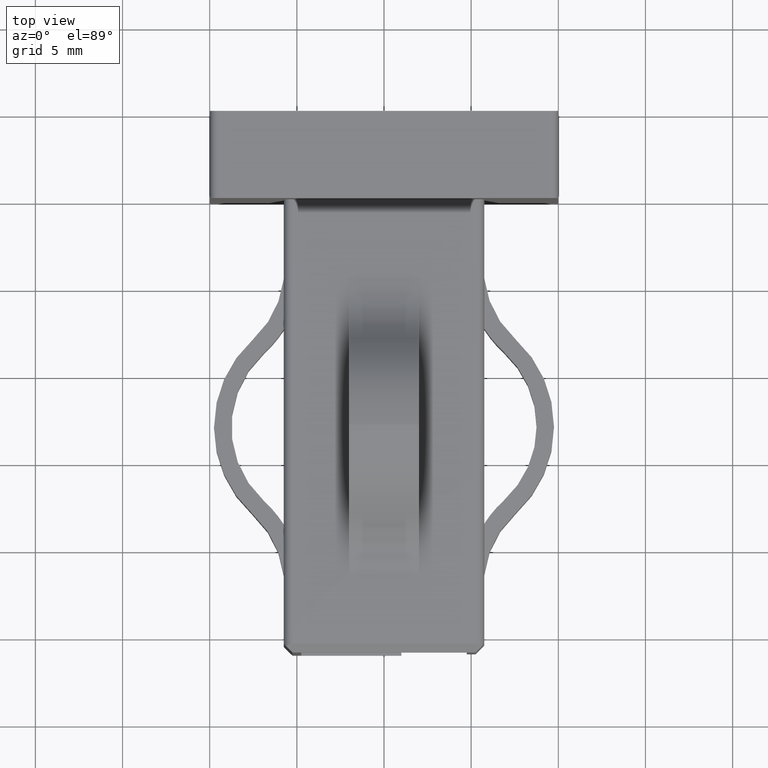
[diagram: clean part render]
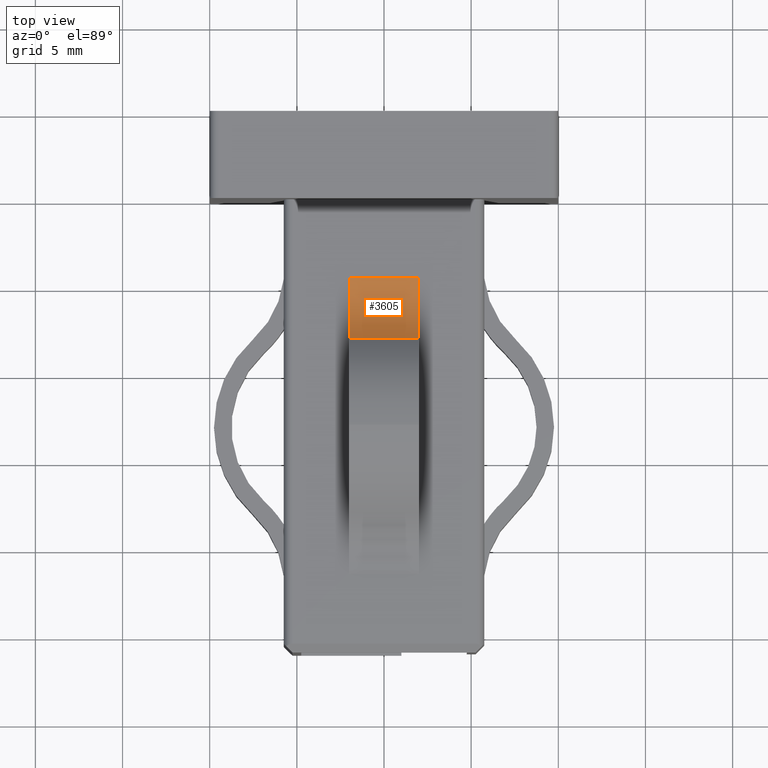
[diagram: same view with one face highlighted and labeled with its STEP entity id]
A machine part, top view. The second image highlights one B-rep face of the part: STEP entity #3605.
In plain terms, the highlighted cylindrical surface (partial cylindrical patch) has radius 4.5423 mm, axis along (-1, -0, 0).
Its self-contained STEP definition (entity closure, byte-faithful):
#884 = VERTEX_POINT ( 'NONE', #8758 ) ;
#1296 = AXIS2_PLACEMENT_3D ( 'NONE', #12902, #7290, #5179 ) ;
#2983 = DIRECTION ( 'NONE',  ( -1.000000000000000000, -0.0000000000000000000, 1.927470528863118800E-016 ) ) ;
#3000 = CARTESIAN_POINT ( 'NONE',  ( 2.000000000000001300, -8.000000077064413500, 7.397058844862114800 ) ) ;
#3574 = ORIENTED_EDGE ( 'NONE', *, *, #4643, .F. ) ;
#3605 = ADVANCED_FACE ( 'NONE', ( #5211 ), #9430, .F. ) ;
#4643 = EDGE_CURVE ( 'NONE', #13331, #8452, #7863, .T. ) ;
#4831 = DIRECTION ( 'NONE',  ( -1.909529633143236900E-016, 0.0000000000000000000, -1.000000000000000000 ) ) ;
#4834 = CARTESIAN_POINT ( 'NONE',  ( 2.000000000000002200, -4.500000000000000900, 10.29227953802768200 ) ) ;
#4927 = DIRECTION ( 'NONE',  ( 1.909529633143236900E-016, 0.0000000000000000000, 1.000000000000000000 ) ) ;
#5169 = EDGE_CURVE ( 'NONE', #9126, #884, #11627, .T. ) ;
#5179 = DIRECTION ( 'NONE',  ( -1.909529633143236900E-016, 0.0000000000000000000, -1.000000000000000000 ) ) ;
#5211 = FACE_OUTER_BOUND ( 'NONE', #11840, .T. ) ;
#5232 = ORIENTED_EDGE ( 'NONE', *, *, #7564, .T. ) ;
#7060 = CIRCLE ( 'NONE', #1296, 4.542279538027684400 ) ;
#7194 = VECTOR ( 'NONE', #2983, 1000.000000000000000 ) ;
#7290 = DIRECTION ( 'NONE',  ( -1.000000000000000000, -3.697785493223492800E-032, 1.927470528863119000E-016 ) ) ;
#7564 = EDGE_CURVE ( 'NONE', #884, #8452, #12935, .T. ) ;
#7860 = AXIS2_PLACEMENT_3D ( 'NONE', #11239, #9175, #4831 ) ;
#7863 = LINE ( 'NONE', #3000, #9408 ) ;
#8213 = CARTESIAN_POINT ( 'NONE',  ( 2.000000000000001300, -4.500000000000000900, 5.749999999999998200 ) ) ;
#8452 = VERTEX_POINT ( 'NONE', #8783 ) ;
#8758 = CARTESIAN_POINT ( 'NONE',  ( -1.999999999999999100, -4.500000000000000900, 5.749999999999998200 ) ) ;
#8783 = CARTESIAN_POINT ( 'NONE',  ( -1.999999999999998700, -8.000000077064413500, 7.397058844862115700 ) ) ;
#9126 = VERTEX_POINT ( 'NONE', #8213 ) ;
#9175 = DIRECTION ( 'NONE',  ( -1.000000000000000000, -3.697785493223492800E-032, 1.927470528863119000E-016 ) ) ;
#9408 = VECTOR ( 'NONE', #11493, 1000.000000000000000 ) ;
#9430 = CYLINDRICAL_SURFACE ( 'NONE', #10969, 4.542279538027684400 ) ;
#9437 = ORIENTED_EDGE ( 'NONE', *, *, #5169, .T. ) ;
#10525 = CARTESIAN_POINT ( 'NONE',  ( 2.000000000000001300, -8.000000077064413500, 7.397058844862114800 ) ) ;
#10969 = AXIS2_PLACEMENT_3D ( 'NONE', #4834, #12375, #4927 ) ;
#11239 = CARTESIAN_POINT ( 'NONE',  ( -1.999999999999997800, -4.500000000000000900, 10.29227953802768200 ) ) ;
#11429 = CARTESIAN_POINT ( 'NONE',  ( 2.000000000000001300, -4.499999999999999100, 5.749999999999995600 ) ) ;
#11493 = DIRECTION ( 'NONE',  ( -1.000000000000000000, -0.0000000000000000000, 1.927470528863118800E-016 ) ) ;
#11627 = LINE ( 'NONE', #11429, #7194 ) ;
#11645 = ORIENTED_EDGE ( 'NONE', *, *, #12944, .F. ) ;
#11840 = EDGE_LOOP ( 'NONE', ( #5232, #3574, #11645, #9437 ) ) ;
#12375 = DIRECTION ( 'NONE',  ( -1.000000000000000000, -0.0000000000000000000, 1.927470528863118800E-016 ) ) ;
#12902 = CARTESIAN_POINT ( 'NONE',  ( 2.000000000000002200, -4.500000000000000900, 10.29227953802768200 ) ) ;
#12935 = CIRCLE ( 'NONE', #7860, 4.542279538027684400 ) ;
#12944 = EDGE_CURVE ( 'NONE', #9126, #13331, #7060, .T. ) ;
#13331 = VERTEX_POINT ( 'NONE', #10525 ) ;